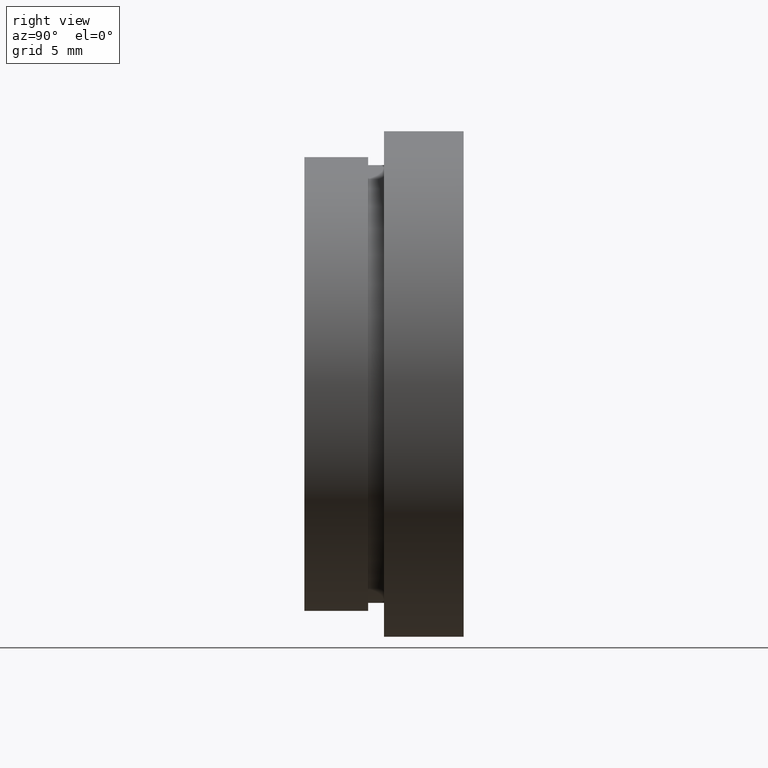
[diagram: clean part render]
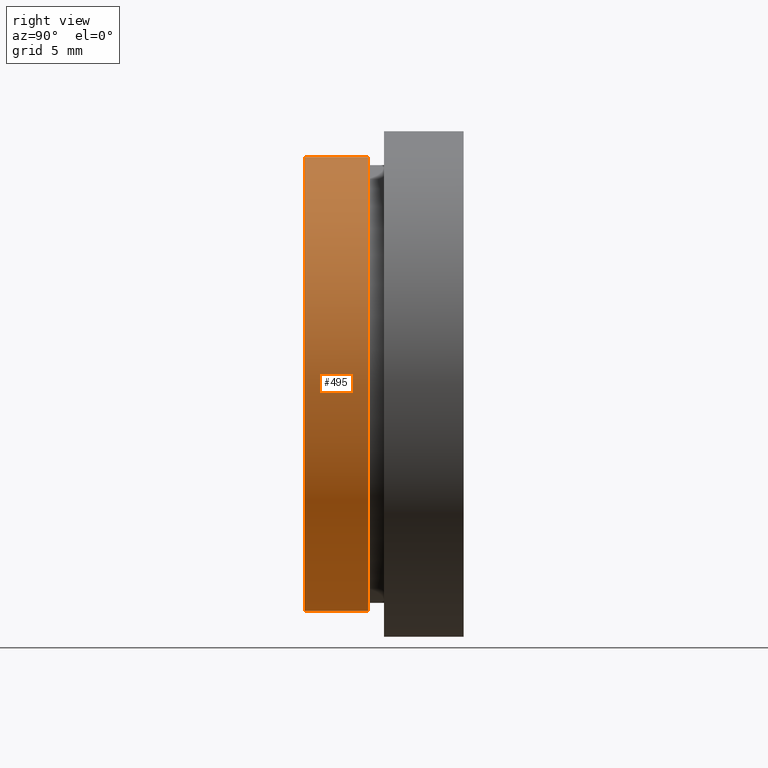
[diagram: same view with one face highlighted and labeled with its STEP entity id]
A machine part, right view. The second image highlights one B-rep face of the part: STEP entity #495.
In plain terms, the highlighted cylindrical surface (partial cylindrical patch) has radius 14.25 mm, axis along (-0, 1, -0).
Its self-contained STEP definition (entity closure, byte-faithful):
#40 = DIRECTION ( 'NONE',  ( 0.0000000000000000000, 0.0000000000000000000, 1.000000000000000000 ) ) ;
#71 = VERTEX_POINT ( 'NONE', #456 ) ;
#80 = DIRECTION ( 'NONE',  ( 0.0000000000000000000, 0.0000000000000000000, 1.000000000000000000 ) ) ;
#91 = CARTESIAN_POINT ( 'NONE',  ( 0.0000000000000000000, 4.000000000000000000, 0.0000000000000000000 ) ) ;
#123 = DIRECTION ( 'NONE',  ( -0.0000000000000000000, 1.000000000000000000, -0.0000000000000000000 ) ) ;
#134 = CARTESIAN_POINT ( 'NONE',  ( 1.745121688784978600E-015, 0.0000000000000000000, -14.25000000000000400 ) ) ;
#139 = CARTESIAN_POINT ( 'NONE',  ( 0.0000000000000000000, 4.000000000000000000, 14.25000000000000400 ) ) ;
#167 = EDGE_LOOP ( 'NONE', ( #177, #558, #426, #421 ) ) ;
#168 = LINE ( 'NONE', #339, #560 ) ;
#177 = ORIENTED_EDGE ( 'NONE', *, *, #239, .T. ) ;
#191 = DIRECTION ( 'NONE',  ( -0.0000000000000000000, 1.000000000000000000, -0.0000000000000000000 ) ) ;
#219 = FACE_OUTER_BOUND ( 'NONE', #167, .T. ) ;
#220 = CARTESIAN_POINT ( 'NONE',  ( 0.0000000000000000000, 0.0000000000000000000, 14.25000000000000400 ) ) ;
#230 = AXIS2_PLACEMENT_3D ( 'NONE', #269, #464, #80 ) ;
#239 = EDGE_CURVE ( 'NONE', #563, #581, #540, .T. ) ;
#269 = CARTESIAN_POINT ( 'NONE',  ( 0.0000000000000000000, 17.41929831819392000, 0.0000000000000000000 ) ) ;
#291 = LINE ( 'NONE', #431, #328 ) ;
#305 = DIRECTION ( 'NONE',  ( 0.0000000000000000000, 0.0000000000000000000, 1.000000000000000000 ) ) ;
#328 = VECTOR ( 'NONE', #123, 1000.000000000000000 ) ;
#339 = CARTESIAN_POINT ( 'NONE',  ( 1.745121688784978600E-015, 17.41929831819392000, -14.25000000000000400 ) ) ;
#346 = CARTESIAN_POINT ( 'NONE',  ( 0.0000000000000000000, 0.0000000000000000000, 0.0000000000000000000 ) ) ;
#378 = VERTEX_POINT ( 'NONE', #139 ) ;
#388 = EDGE_CURVE ( 'NONE', #378, #71, #582, .T. ) ;
#412 = CYLINDRICAL_SURFACE ( 'NONE', #230, 14.25000000000000400 ) ;
#421 = ORIENTED_EDGE ( 'NONE', *, *, #532, .F. ) ;
#426 = ORIENTED_EDGE ( 'NONE', *, *, #388, .F. ) ;
#431 = CARTESIAN_POINT ( 'NONE',  ( 0.0000000000000000000, 17.41929831819392000, 14.25000000000000400 ) ) ;
#456 = CARTESIAN_POINT ( 'NONE',  ( 1.745121688784978600E-015, 4.000000000000000000, -14.25000000000000400 ) ) ;
#464 = DIRECTION ( 'NONE',  ( -0.0000000000000000000, 1.000000000000000000, -0.0000000000000000000 ) ) ;
#494 = DIRECTION ( 'NONE',  ( -0.0000000000000000000, 1.000000000000000000, -0.0000000000000000000 ) ) ;
#495 = ADVANCED_FACE ( 'NONE', ( #219 ), #412, .T. ) ;
#512 = EDGE_CURVE ( 'NONE', #581, #71, #168, .T. ) ;
#531 = DIRECTION ( 'NONE',  ( -0.0000000000000000000, 1.000000000000000000, -0.0000000000000000000 ) ) ;
#532 = EDGE_CURVE ( 'NONE', #563, #378, #291, .T. ) ;
#540 = CIRCLE ( 'NONE', #586, 14.25000000000000400 ) ;
#558 = ORIENTED_EDGE ( 'NONE', *, *, #512, .T. ) ;
#560 = VECTOR ( 'NONE', #191, 1000.000000000000000 ) ;
#563 = VERTEX_POINT ( 'NONE', #220 ) ;
#576 = AXIS2_PLACEMENT_3D ( 'NONE', #91, #531, #40 ) ;
#581 = VERTEX_POINT ( 'NONE', #134 ) ;
#582 = CIRCLE ( 'NONE', #576, 14.25000000000000400 ) ;
#586 = AXIS2_PLACEMENT_3D ( 'NONE', #346, #494, #305 ) ;